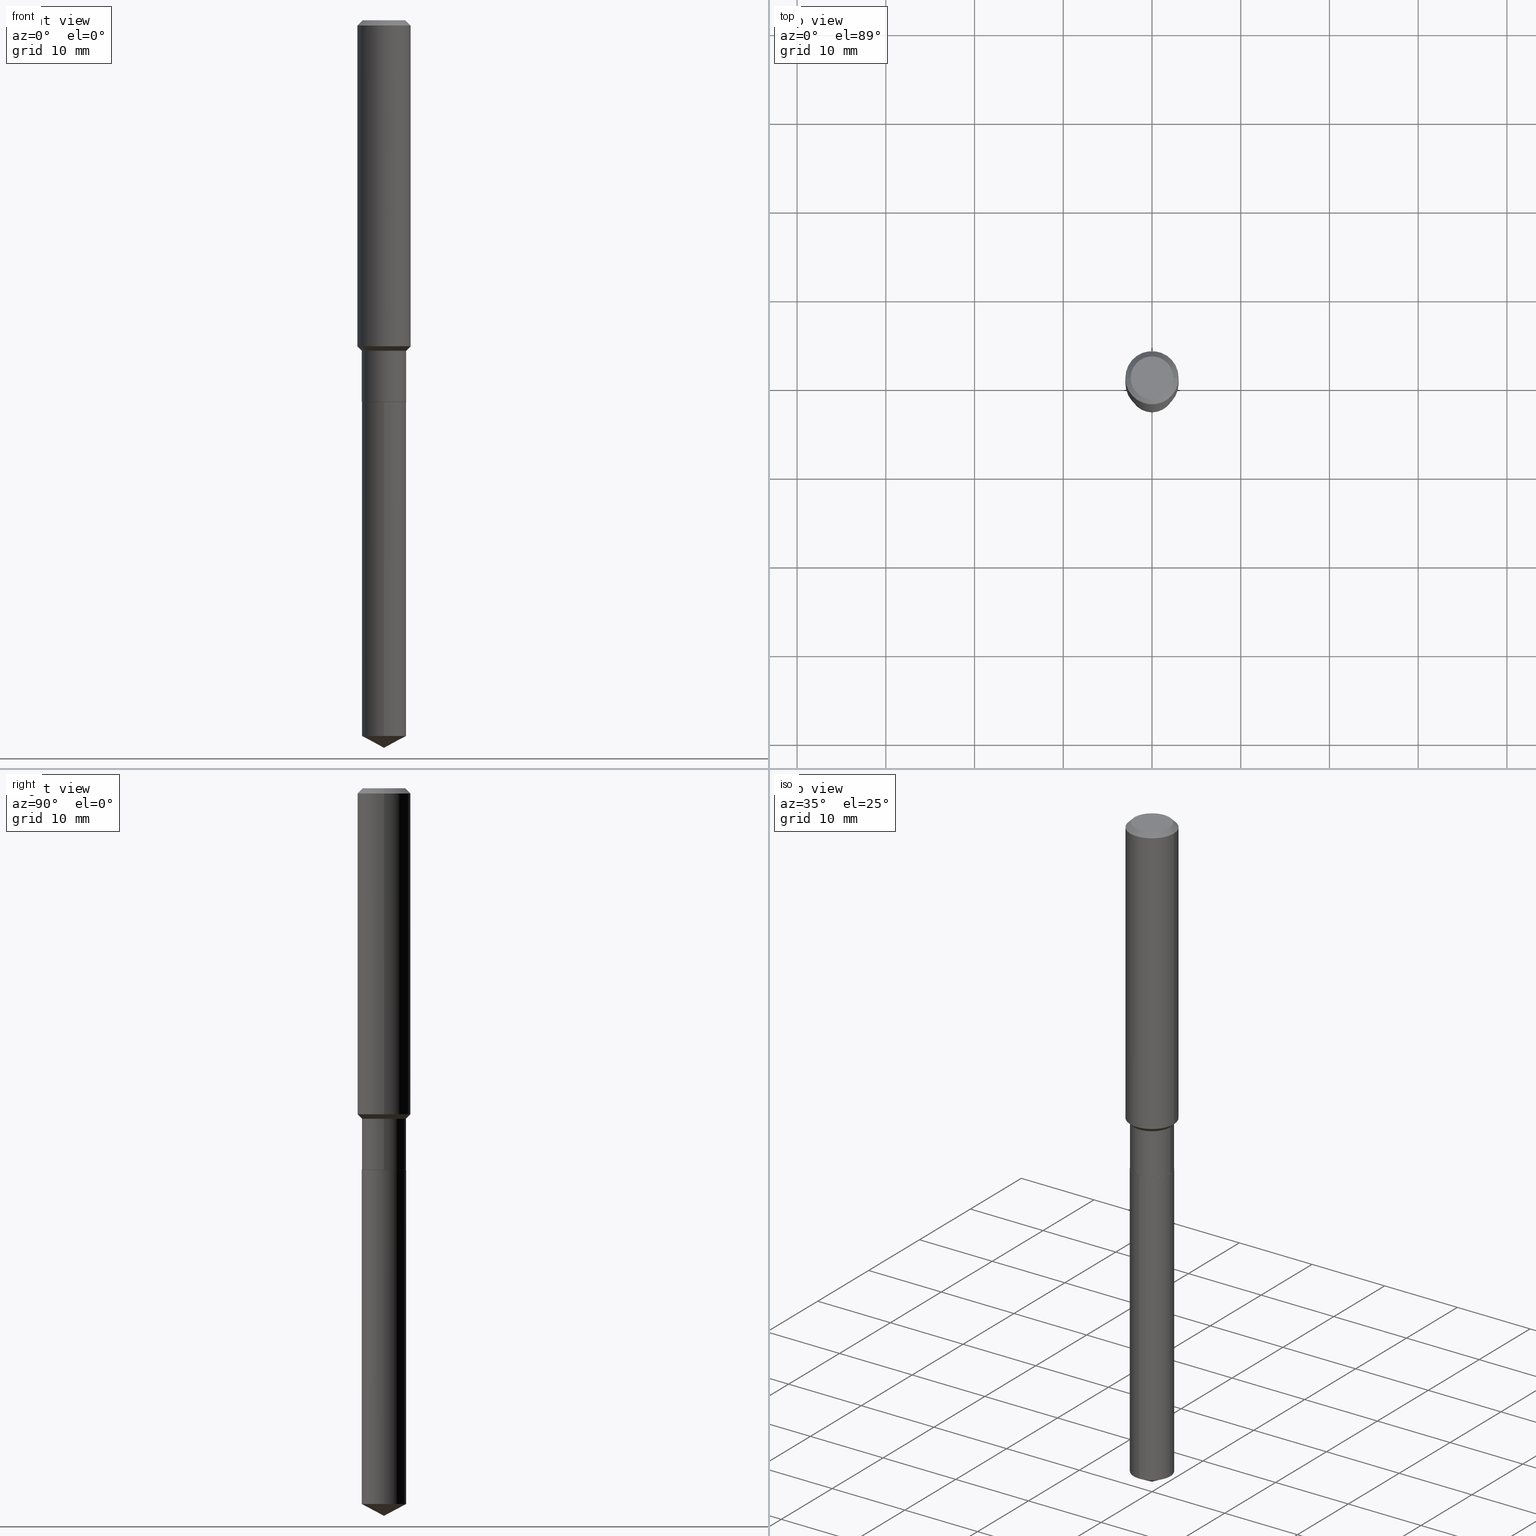
[diagram: canonical four-view strip — front | top / right | iso, engineering-drawing reading convention]
A machine part, canonical four-view strip (front | top / right | iso — engineering-drawing reading convention). The complete STEP part file that produces these views, byte-faithful:
ISO-10303-21;
HEADER;
FILE_DESCRIPTION (( 'STEP AP203' ),
    '1' );
FILE_NAME ('65020.STEP',
    '2024-04-24T19:52:29',
    ( '' ),
    ( '' ),
    'SwSTEP 2.0',
    'SolidWorks 2023',
    '' );
FILE_SCHEMA (( 'CONFIG_CONTROL_DESIGN' ));
ENDSEC;

DATA;
#1 = PLANE ( 'NONE',  #393 ) ;
#2 = VERTEX_POINT ( 'NONE', #74 ) ;
#3 = LINE ( 'NONE', #107, #204 ) ;
#4 = VERTEX_POINT ( 'NONE', #203 ) ;
#5 = AXIS2_PLACEMENT_3D ( 'NONE', #446, #93, #479 ) ;
#6 = ORIENTED_EDGE ( 'NONE', *, *, #237, .F. ) ;
#7 = VECTOR ( 'NONE', #344, 39.37007874015748143 ) ;
#8 = ADVANCED_FACE ( 'NONE', ( #382 ), #390, .F. ) ;
#9 = EDGE_LOOP ( 'NONE', ( #109, #242, #54, #259 ) ) ;
#10 = CARTESIAN_POINT ( 'NONE',  ( 0.000000000000000000, 0.000000000000000000, 0.000000000000000000 ) ) ;
#11 = ADVANCED_FACE ( 'NONE', ( #45 ), #147, .T. ) ;
#12 = EDGE_LOOP ( 'NONE', ( #302, #227, #194, #263 ) ) ;
#13 = DIRECTION ( 'NONE',  ( -1.000000000000000000, 6.982962677686266711E-15, 0.000000000000000000 ) ) ;
#14 = PRODUCT_DEFINITION_SHAPE ( 'NONE', 'NONE',  #19 ) ;
#15 = DIRECTION ( 'NONE',  ( -6.982962677686266711E-15, -1.000000000000000000, 3.541896320645564813E-15 ) ) ;
#16 = FACE_OUTER_BOUND ( 'NONE', #312, .T. ) ;
#17 = VERTEX_POINT ( 'NONE', #84 ) ;
#18 = ORIENTED_EDGE ( 'NONE', *, *, #273, .T. ) ;
#19 = PRODUCT_DEFINITION ( 'UNKNOWN', '', #467, #131 ) ;
#20 = DIRECTION ( 'NONE',  ( 1.000000000000000000, -6.982962677686267499E-15, 4.875432709231658792E-29 ) ) ;
#21 = LINE ( 'NONE', #325, #324 ) ;
#22 = EDGE_CURVE ( 'NONE', #17, #413, #155, .T. ) ;
#23 = DIRECTION ( 'NONE',  ( 1.000000000000000000, -6.982962677686270655E-15, 0.000000000000000000 ) ) ;
#24 = FACE_OUTER_BOUND ( 'NONE', #106, .T. ) ;
#25 = MECHANICAL_CONTEXT ( 'NONE', #161, 'mechanical' ) ;
#26 = CARTESIAN_POINT ( 'NONE',  ( -8.838511658199896589E-28, 1.261861634647219789E-13, 36.14177874015747705 ) ) ;
#27 = DIRECTION ( 'NONE',  ( 1.000000000000000000, -6.982962677686266711E-15, 0.000000000000000000 ) ) ;
#28 = COORDINATED_UNIVERSAL_TIME_OFFSET ( 5, 0, .BEHIND. ) ;
#29 = CARTESIAN_POINT ( 'NONE',  ( -0.09844999999999995421, -4.815090877279988422E-15, -1.466500000000000137 ) ) ;
#30 = EDGE_LOOP ( 'NONE', ( #190, #76, #377, #357 ) ) ;
#31 = CARTESIAN_POINT ( 'NONE',  ( 4.139934141990818357E-29, -5.910728758527561864E-15, -1.692900000000000071 ) ) ;
#32 = ORIENTED_EDGE ( 'NONE', *, *, #237, .T. ) ;
#33 = FACE_OUTER_BOUND ( 'NONE', #461, .T. ) ;
#34 = EDGE_CURVE ( 'NONE', #192, #426, #285, .T. ) ;
#35 = AXIS2_PLACEMENT_3D ( 'NONE', #100, #415, #416 ) ;
#36 = CARTESIAN_POINT ( 'NONE',  ( 0.000000000000000000, 0.000000000000000000, 0.000000000000000000 ) ) ;
#37 = ORIENTED_EDGE ( 'NONE', *, *, #87, .T. ) ;
#38 = DIRECTION ( 'NONE',  ( -2.445468806185136597E-29, 3.491481338843145583E-15, 1.000000000000000000 ) ) ;
#39 = ORIENTED_EDGE ( 'NONE', *, *, #34, .F. ) ;
#40 = EDGE_CURVE ( 'NONE', #192, #238, #176, .T. ) ;
#41 = CARTESIAN_POINT ( 'NONE',  ( 4.139934141990818357E-29, -5.910728758527561864E-15, -1.692900000000000071 ) ) ;
#42 = CLOSED_SHELL ( 'NONE', ( #457, #11, #166, #68, #8 ) ) ;
#43 = ORIENTED_EDGE ( 'NONE', *, *, #361, .F. ) ;
#44 = DIRECTION ( 'NONE',  ( -2.445468806185136597E-29, 3.491481338843145583E-15, 1.000000000000000000 ) ) ;
#45 = FACE_OUTER_BOUND ( 'NONE', #119, .T. ) ;
#46 = DIRECTION ( 'NONE',  ( 1.000000000000000000, -6.982962677686266711E-15, 4.876176775795936353E-29 ) ) ;
#47 = ORIENTED_EDGE ( 'NONE', *, *, #197, .F. ) ;
#48 = CARTESIAN_POINT ( 'NONE',  ( 3.586280004270503451E-29, -5.120257383413473493E-15, -1.466500000000000137 ) ) ;
#49 = ORIENTED_EDGE ( 'NONE', *, *, #156, .F. ) ;
#50 = ADVANCED_FACE ( 'NONE', ( #222 ), #472, .T. ) ;
#51 = AXIS2_PLACEMENT_3D ( 'NONE', #198, #346, #316 ) ;
#52 =( LENGTH_UNIT ( ) NAMED_UNIT ( * ) SI_UNIT ( $, .METRE. ) );
#53 = AXIS2_PLACEMENT_3D ( 'NONE', #187, #102, #27 ) ;
#54 = ORIENTED_EDGE ( 'NONE', *, *, #266, .F. ) ;
#55 = APPROVAL_STATUS ( 'not_yet_approved' ) ;
#56 = CARTESIAN_POINT ( 'NONE',  ( 0.1181000000000000799, -8.246878922347486570E-16, 5.758764772215004644E-30 ) ) ;
#57 = CARTESIAN_POINT ( 'NONE',  ( 4.139934141990818357E-29, -5.910728758527561864E-15, -1.692900000000000071 ) ) ;
#58 = EDGE_CURVE ( 'NONE', #2, #98, #130, .T. ) ;
#59 = DIRECTION ( 'NONE',  ( -2.445468806185136597E-29, 3.491481338843145583E-15, 1.000000000000000000 ) ) ;
#60 = DIRECTION ( 'NONE',  ( 1.000000000000000000, 0.000000000000000000, 0.000000000000000000 ) ) ;
#61 = CC_DESIGN_SECURITY_CLASSIFICATION ( #137, ( #467 ) ) ;
#62 = DIRECTION ( 'NONE',  ( -2.445509088617800403E-29, 3.491423652106837223E-15, 1.000000000000000000 ) ) ;
#63 = COORDINATED_UNIVERSAL_TIME_OFFSET ( 5, 0, .BEHIND. ) ;
#64 = CARTESIAN_POINT ( 'NONE',  ( 0.1180999999999999966, -8.926936027602933910E-16, -0.02362000000000014088 ) ) ;
#65 = DATE_TIME_ROLE ( 'classification_date' ) ;
#66 = FACE_OUTER_BOUND ( 'NONE', #12, .T. ) ;
#67 = ORIENTED_EDGE ( 'NONE', *, *, #422, .T. ) ;
#68 = ADVANCED_FACE ( 'NONE', ( #399 ), #289, .T. ) ;
#69 = CARTESIAN_POINT ( 'NONE',  ( 4.139934141990818357E-29, -5.910728758527561864E-15, -1.692900000000000071 ) ) ;
#70 = ORIENTED_EDGE ( 'NONE', *, *, #223, .T. ) ;
#71 = VERTEX_POINT ( 'NONE', #165 ) ;
#72 = LOCAL_TIME ( 15, 52, 29.00000000000000000, #63 ) ;
#73 = ORIENTED_EDGE ( 'NONE', *, *, #133, .F. ) ;
#74 = CARTESIAN_POINT ( 'NONE',  ( -6.874726756181350545E-16, -0.09845000000001107032, -3.175953206452927002 ) ) ;
#75 = DIRECTION ( 'NONE',  ( -2.445468806185136597E-29, 3.491481338843145583E-15, 1.000000000000000000 ) ) ;
#76 = ORIENTED_EDGE ( 'NONE', *, *, #450, .F. ) ;
#77 = CIRCLE ( 'NONE', #150, 0.1181000000000001632 ) ;
#78 = AXIS2_PLACEMENT_3D ( 'NONE', #41, #75, #272 ) ;
#79 = EDGE_LOOP ( 'NONE', ( #308, #351, #233, #39 ) ) ;
#80 = EDGE_CURVE ( 'NONE', #244, #192, #21, .T. ) ;
#81 = LINE ( 'NONE', #83, #7 ) ;
#82 = ORIENTED_EDGE ( 'NONE', *, *, #410, .T. ) ;
#83 = CARTESIAN_POINT ( 'NONE',  ( 7.894700602524332477E-29, -1.127155829184829715E-14, -3.228299999999999947 ) ) ;
#84 = CARTESIAN_POINT ( 'NONE',  ( 6.995293233558961091E-16, 0.09844999999998889362, -3.175953206452928335 ) ) ;
#85 = PERSON_AND_ORGANIZATION_ROLE ( 'design_owner' ) ;
#86 = CARTESIAN_POINT ( 'NONE',  ( -0.1180999999999999966, 7.422191030112725094E-16, -0.02362000000000014088 ) ) ;
#87 = EDGE_CURVE ( 'NONE', #117, #463, #215, .T. ) ;
#88 = CARTESIAN_POINT ( 'NONE',  ( -6.874726756181714407E-16, -0.09845000000000590779, -1.692899999999999849 ) ) ;
#89 = APPROVAL ( #90, 'UNSPECIFIED' ) ;
#90 = APPROVAL_STATUS ( 'not_yet_approved' ) ;
#91 = DIRECTION ( 'NONE',  ( -6.982962677686265922E-15, -1.000000000000000000, 2.774858297271979165E-15 ) ) ;
#92 = CIRCLE ( 'NONE', #5, 0.09844999999999995421 ) ;
#93 = DIRECTION ( 'NONE',  ( -2.445468806185136597E-29, 3.491481338843145583E-15, 1.000000000000000000 ) ) ;
#94 = AXIS2_PLACEMENT_3D ( 'NONE', #488, #140, #303 ) ;
#95 = DATE_TIME_ROLE ( 'creation_date' ) ;
#96 = DIRECTION ( 'NONE',  ( -6.982962677686265922E-15, -1.000000000000000000, 5.549716594543958330E-15 ) ) ;
#97 = DATE_AND_TIME ( #175, #72 ) ;
#98 = VERTEX_POINT ( 'NONE', #88 ) ;
#99 = CIRCLE ( 'NONE', #169, 0.09794999999999999540 ) ;
#100 = CARTESIAN_POINT ( 'NONE',  ( 3.586280004270503451E-29, -5.120257383413473493E-15, -1.466500000000000137 ) ) ;
#101 = AXIS2_PLACEMENT_3D ( 'NONE', #386, #199, #435 ) ;
#102 = DIRECTION ( 'NONE',  ( -2.445468806185136597E-29, 3.491481338843145583E-15, 1.000000000000000000 ) ) ;
#103 = ORIENTED_EDGE ( 'NONE', *, *, #223, .F. ) ;
#104 = APPROVAL ( #178, 'UNSPECIFIED' ) ;
#105 = FACE_OUTER_BOUND ( 'NONE', #9, .T. ) ;
#106 = EDGE_LOOP ( 'NONE', ( #419, #67, #145 ) ) ;
#107 = CARTESIAN_POINT ( 'NONE',  ( 7.894838186748898083E-29, -1.127136297609650291E-14, -3.228299999999999947 ) ) ;
#108 = ADVANCED_FACE ( 'NONE', ( #367 ), #331, .F. ) ;
#109 = ORIENTED_EDGE ( 'NONE', *, *, #406, .T. ) ;
#110 = DIRECTION ( 'NONE',  ( 2.445468806185136597E-29, -3.491481338843145583E-15, -1.000000000000000000 ) ) ;
#111 = ORIENTED_EDGE ( 'NONE', *, *, #431, .F. ) ;
#112 = CYLINDRICAL_SURFACE ( 'NONE', #287, 0.09844999999999998197 ) ;
#113 = DIRECTION ( 'NONE',  ( -2.445468806185136597E-29, 3.491481338843145583E-15, 1.000000000000000000 ) ) ;
#114 = EDGE_CURVE ( 'NONE', #464, #267, #99, .T. ) ;
#115 = VECTOR ( 'NONE', #252, 39.37007874015748143 ) ;
#116 = FACE_OUTER_BOUND ( 'NONE', #434, .T. ) ;
#117 = VERTEX_POINT ( 'NONE', #210 ) ;
#118 = CARTESIAN_POINT ( 'NONE',  ( 5.776197320209327532E-31, -8.246878922347559293E-17, -0.02362000000000014088 ) ) ;
#119 = EDGE_LOOP ( 'NONE', ( #470, #18, #343 ) ) ;
#120 = EDGE_CURVE ( 'NONE', #238, #463, #466, .T. ) ;
#121 = DIRECTION ( 'NONE',  ( 1.000000000000000000, -6.982962677686266711E-15, 0.000000000000000000 ) ) ;
#122 = CIRCLE ( 'NONE', #391, 0.09844999999999999585 ) ;
#123 = DATE_AND_TIME ( #445, #424 ) ;
#124 = AXIS2_PLACEMENT_3D ( 'NONE', #126, #356, #20 ) ;
#125 = CARTESIAN_POINT ( 'NONE',  ( -0.1181000000000000799, 8.391509709326788873E-16, -5.809262341591047988E-30 ) ) ;
#126 = CARTESIAN_POINT ( 'NONE',  ( 4.716267017698007905E-46, -6.733579360998555036E-32, -1.928573779297252010E-17 ) ) ;
#127 = DIRECTION ( 'NONE',  ( -2.445468806185136877E-29, 3.491481338843145188E-15, 1.000000000000000000 ) ) ;
#128 = FACE_OUTER_BOUND ( 'NONE', #275, .T. ) ;
#129 = PERSON_AND_ORGANIZATION_ROLE ( 'design_supplier' ) ;
#130 = LINE ( 'NONE', #286, #401 ) ;
#131 = DESIGN_CONTEXT ( 'detailed design', #170, 'design' ) ;
#132 = CIRCLE ( 'NONE', #202, 0.09844999999999999585 ) ;
#133 = EDGE_CURVE ( 'NONE', #244, #185, #92, .T. ) ;
#134 = APPROVAL_ROLE ( '' ) ;
#135 = DIRECTION ( 'NONE',  ( -2.445509088617800403E-29, 3.491423652106837223E-15, 1.000000000000000000 ) ) ;
#136 = AXIS2_PLACEMENT_3D ( 'NONE', #471, #164, #60 ) ;
#137 = SECURITY_CLASSIFICATION ( '', '', #332 ) ;
#138 = CC_DESIGN_PERSON_AND_ORGANIZATION_ASSIGNMENT ( #253, #366, ( #137 ) ) ;
#139 = DIRECTION ( 'NONE',  ( -2.445509088617800403E-29, 3.491423652106837223E-15, 1.000000000000000000 ) ) ;
#140 = DIRECTION ( 'NONE',  ( 2.445468806185136597E-29, -3.491481338843145583E-15, -1.000000000000000000 ) ) ;
#141 = CIRCLE ( 'NONE', #459, 0.09844999999999999585 ) ;
#142 = DIRECTION ( 'NONE',  ( -1.000000000000000000, 6.982962677686265922E-15, -4.876176775795935793E-29 ) ) ;
#143 = ORIENTED_EDGE ( 'NONE', *, *, #406, .F. ) ;
#144 = FACE_OUTER_BOUND ( 'NONE', #380, .T. ) ;
#145 = ORIENTED_EDGE ( 'NONE', *, *, #291, .F. ) ;
#146 = EDGE_CURVE ( 'NONE', #267, #196, #257, .T. ) ;
#147 = CONICAL_SURFACE ( 'NONE', #383, 74.04434902938345431, 1.082104136236486047 ) ;
#148 = ORIENTED_EDGE ( 'NONE', *, *, #114, .F. ) ;
#149 = DATE_AND_TIME ( #403, #404 ) ;
#150 = AXIS2_PLACEMENT_3D ( 'NONE', #157, #319, #162 ) ;
#151 = MANIFOLD_SOLID_BREP ( 'Body-Move/Copy2[2]', #352 ) ;
#152 = ORIENTED_EDGE ( 'NONE', *, *, #40, .F. ) ;
#153 = APPROVAL_DATE_TIME ( #149, #427 ) ;
#154 = CYLINDRICAL_SURFACE ( 'NONE', #490, 0.1181000000000000799 ) ;
#155 = LINE ( 'NONE', #314, #473 ) ;
#156 = EDGE_CURVE ( 'NONE', #98, #413, #122, .T. ) ;
#157 = CARTESIAN_POINT ( 'NONE',  ( 3.538226542228964985E-29, -5.051649775105204853E-15, -1.446849999999999969 ) ) ;
#158 = ORIENTED_EDGE ( 'NONE', *, *, #281, .F. ) ;
#159 = PRODUCT_RELATED_PRODUCT_CATEGORY ( 'detail', '', ( #418 ) ) ;
#160 = AXIS2_PLACEMENT_3D ( 'NONE', #48, #359, #177 ) ;
#161 = APPLICATION_CONTEXT ( 'configuration controlled 3d designs of mechanical parts and assemblies' ) ;
#162 = DIRECTION ( 'NONE',  ( 1.000000000000000000, -6.982962677686270655E-15, 0.000000000000000000 ) ) ;
#163 = ORIENTED_EDGE ( 'NONE', *, *, #266, .T. ) ;
#164 = DIRECTION ( 'NONE',  ( 0.000000000000000000, 0.000000000000000000, 1.000000000000000000 ) ) ;
#165 = CARTESIAN_POINT ( 'NONE',  ( 0.09844999999999999585, -6.596455693476352920E-15, -1.692400000000000126 ) ) ;
#166 = ADVANCED_FACE ( 'NONE', ( #24 ), #412, .T. ) ;
#167 = CYLINDRICAL_SURFACE ( 'NONE', #172, 0.09844999999999999585 ) ;
#168 = CARTESIAN_POINT ( 'NONE',  ( 0.000000000000000000, 0.000000000000000000, 0.000000000000000000 ) ) ;
#169 = AXIS2_PLACEMENT_3D ( 'NONE', #251, #296, #23 ) ;
#170 = APPLICATION_CONTEXT ( 'configuration controlled 3d designs of mechanical parts and assemblies' ) ;
#171 = DATE_AND_TIME ( #398, #189 ) ;
#172 = AXIS2_PLACEMENT_3D ( 'NONE', #323, #298, #395 ) ;
#173 = DIRECTION ( 'NONE',  ( -0.7071067811866199593, 7.493145998870616062E-15, 0.7071067811864750752 ) ) ;
#174 = CARTESIAN_POINT ( 'NONE',  ( 0.09794999999999999540, -6.594709952806931417E-15, -1.692900000000000071 ) ) ;
#175 = CALENDAR_DATE ( 2024, 24, 4 ) ;
#176 = LINE ( 'NONE', #125, #430 ) ;
#177 = DIRECTION ( 'NONE',  ( 1.000000000000000000, -6.982962677686269077E-15, 0.000000000000000000 ) ) ;
#178 = APPROVAL_STATUS ( 'not_yet_approved' ) ;
#179 = DIRECTION ( 'NONE',  ( -6.982962677686266711E-15, -1.000000000000000000, 3.541896320645564813E-15 ) ) ;
#180 = CIRCLE ( 'NONE', #458, 0.09844999999999995421 ) ;
#181 = PERSON_AND_ORGANIZATION ( #388, #278 ) ;
#182 = CONICAL_SURFACE ( 'NONE', #483, 0.09794999999999999540, 0.7853981633975507526 ) ;
#183 = EDGE_CURVE ( 'NONE', #2, #17, #132, .T. ) ;
#184 = CARTESIAN_POINT ( 'NONE',  ( 4.138711407587726116E-29, -5.908983017858140360E-15, -1.692400000000000126 ) ) ;
#185 = VERTEX_POINT ( 'NONE', #443 ) ;
#186 = CC_DESIGN_PERSON_AND_ORGANIZATION_ASSIGNMENT ( #212, #219, ( #19 ) ) ;
#187 = CARTESIAN_POINT ( 'NONE',  ( 5.776197320209327532E-31, -8.246878922347559293E-17, -0.02362000000000014088 ) ) ;
#188 = ORIENTED_EDGE ( 'NONE', *, *, #22, .F. ) ;
#189 = LOCAL_TIME ( 15, 52, 29.00000000000000000, #288 ) ;
#190 = ORIENTED_EDGE ( 'NONE', *, *, #87, .F. ) ;
#191 = DIRECTION ( 'NONE',  ( -2.445468806185136597E-29, 3.491481338843145583E-15, 1.000000000000000000 ) ) ;
#192 = VERTEX_POINT ( 'NONE', #258 ) ;
#193 = DIRECTION ( 'NONE',  ( -2.445468806185136877E-29, 3.491481338843145188E-15, 1.000000000000000000 ) ) ;
#194 = ORIENTED_EDGE ( 'NONE', *, *, #240, .F. ) ;
#195 = AXIS2_PLACEMENT_3D ( 'NONE', #31, #228, #307 ) ;
#196 = VERTEX_POINT ( 'NONE', #409 ) ;
#197 = EDGE_CURVE ( 'NONE', #487, #238, #438, .T. ) ;
#198 = CARTESIAN_POINT ( 'NONE',  ( 4.139934141990818357E-29, -5.910728758527561864E-15, -1.692900000000000071 ) ) ;
#199 = DIRECTION ( 'NONE',  ( -2.445468806185136597E-29, 3.491481338843145583E-15, 1.000000000000000000 ) ) ;
#200 = EDGE_LOOP ( 'NONE', ( #188, #436, #206, #6 ) ) ;
#201 = CARTESIAN_POINT ( 'NONE',  ( 4.138711407587726116E-29, -5.908983017858140360E-15, -1.692400000000000126 ) ) ;
#202 = AXIS2_PLACEMENT_3D ( 'NONE', #299, #448, #96 ) ;
#203 = CARTESIAN_POINT ( 'NONE',  ( 7.894836990784845646E-29, -1.127136297609650291E-14, -3.228299999999999947 ) ) ;
#204 = VECTOR ( 'NONE', #264, 39.37007874015748143 ) ;
#205 =( NAMED_UNIT ( * ) PLANE_ANGLE_UNIT ( ) SI_UNIT ( $, .RADIAN. ) );
#206 = ORIENTED_EDGE ( 'NONE', *, *, #58, .T. ) ;
#207 = COORDINATED_UNIVERSAL_TIME_OFFSET ( 5, 0, .BEHIND. ) ;
#208 = LINE ( 'NONE', #474, #115 ) ;
#209 = DIRECTION ( 'NONE',  ( -2.445468806185136597E-29, 3.491481338843145583E-15, 1.000000000000000000 ) ) ;
#210 = CARTESIAN_POINT ( 'NONE',  ( 0.09447999999999998066, -7.704367267948738690E-16, -1.928573779296752193E-17 ) ) ;
#211 = AXIS2_PLACEMENT_3D ( 'NONE', #218, #292, #371 ) ;
#212 = PERSON_AND_ORGANIZATION ( #388, #278 ) ;
#213 = AXIS2_PLACEMENT_3D ( 'NONE', #36, #191, #335 ) ;
#214 = EDGE_CURVE ( 'NONE', #426, #463, #396, .T. ) ;
#215 = LINE ( 'NONE', #64, #315 ) ;
#216 = APPLICATION_PROTOCOL_DEFINITION ( 'international standard', 'config_control_design', 1994, #161 ) ;
#217 = PERSON_AND_ORGANIZATION ( #388, #278 ) ;
#218 = CARTESIAN_POINT ( 'NONE',  ( 4.139934141990818357E-29, -5.910728758527561864E-15, -1.692900000000000071 ) ) ;
#219 = PERSON_AND_ORGANIZATION_ROLE ( 'creator' ) ;
#220 = APPROVAL_ROLE ( '' ) ;
#221 = DATE_AND_TIME ( #480, #290 ) ;
#222 = FACE_OUTER_BOUND ( 'NONE', #235, .T. ) ;
#223 = EDGE_CURVE ( 'NONE', #185, #244, #180, .T. ) ;
#224 = PERSON_AND_ORGANIZATION ( #388, #278 ) ;
#225 = CARTESIAN_POINT ( 'NONE',  ( 2.358133508849003952E-46, -3.366789680499277518E-32, -9.642868896486260050E-18 ) ) ;
#226 = VECTOR ( 'NONE', #282, 39.37007874015748143 ) ;
#227 = ORIENTED_EDGE ( 'NONE', *, *, #146, .T. ) ;
#228 = DIRECTION ( 'NONE',  ( -2.445509088617800403E-29, 3.491423652106837223E-15, 1.000000000000000000 ) ) ;
#229 = DIRECTION ( 'NONE',  ( -2.445468806185136597E-29, 3.491481338843145583E-15, 1.000000000000000000 ) ) ;
#230 = VECTOR ( 'NONE', #173, 39.37007874015748143 ) ;
#231 = CYLINDRICAL_SURFACE ( 'NONE', #213, 0.1181000000000000799 ) ;
#232 = CIRCLE ( 'NONE', #384, 0.09794999999999999540 ) ;
#233 = ORIENTED_EDGE ( 'NONE', *, *, #485, .T. ) ;
#234 = DIRECTION ( 'NONE',  ( -2.445468806185136597E-29, 3.491481338843145583E-15, 1.000000000000000000 ) ) ;
#235 = EDGE_LOOP ( 'NONE', ( #456, #277, #103, #354 ) ) ;
#236 = ORIENTED_EDGE ( 'NONE', *, *, #318, .T. ) ;
#237 = EDGE_CURVE ( 'NONE', #413, #98, #246, .T. ) ;
#238 = VERTEX_POINT ( 'NONE', #376 ) ;
#239 = CONICAL_SURFACE ( 'NONE', #78, 0.09794999999999999540, 0.7853981633975507526 ) ;
#240 = EDGE_CURVE ( 'NONE', #71, #196, #476, .T. ) ;
#241 = CARTESIAN_POINT ( 'NONE',  ( 0.000000000000000000, 0.000000000000000000, 0.000000000000000000 ) ) ;
#242 = ORIENTED_EDGE ( 'NONE', *, *, #40, .T. ) ;
#243 = FACE_OUTER_BOUND ( 'NONE', #79, .T. ) ;
#244 = VERTEX_POINT ( 'NONE', #29 ) ;
#245 =( CONVERSION_BASED_UNIT ( 'INCH', #447 ) LENGTH_UNIT ( ) NAMED_UNIT ( #428 ) );
#246 = CIRCLE ( 'NONE', #195, 0.09844999999999999585 ) ;
#247 = CARTESIAN_POINT ( 'NONE',  ( 3.538226542228964985E-29, -5.051649775105204853E-15, -1.446849999999999969 ) ) ;
#248 = VECTOR ( 'NONE', #374, 39.37007874015748143 ) ;
#249 = APPLICATION_PROTOCOL_DEFINITION ( 'international standard', 'config_control_design', 1994, #170 ) ;
#250 = DIRECTION ( 'NONE',  ( -0.7071067811865459074, 2.468850131082240100E-15, -0.7071067811865491270 ) ) ;
#251 = CARTESIAN_POINT ( 'NONE',  ( 4.139934141990818357E-29, -5.910728758527561864E-15, -1.692900000000000071 ) ) ;
#252 = DIRECTION ( 'NONE',  ( 0.7071067811865484609, -2.468850131082266921E-15, 0.7071067811865465735 ) ) ;
#253 = PERSON_AND_ORGANIZATION ( #388, #278 ) ;
#254 = CARTESIAN_POINT ( 'NONE',  ( -0.09794999999999999540, -5.214752148850543863E-15, -1.692900000000000071 ) ) ;
#255 = AXIS2_PLACEMENT_3D ( 'NONE', #247, #113, #387 ) ;
#256 = APPROVAL_PERSON_ORGANIZATION ( #181, #104, #330 ) ;
#257 = LINE ( 'NONE', #254, #230 ) ;
#258 = CARTESIAN_POINT ( 'NONE',  ( -0.1181000000000001632, -4.212498804172525078E-15, -1.446849999999999969 ) ) ;
#259 = ORIENTED_EDGE ( 'NONE', *, *, #214, .F. ) ;
#260 = AXIS2_PLACEMENT_3D ( 'NONE', #168, #59, #482 ) ;
#261 = CARTESIAN_POINT ( 'NONE',  ( 0.09794999999999999540, -6.594709952806931417E-15, -1.692900000000000071 ) ) ;
#262 = CONICAL_SURFACE ( 'NONE', #160, 0.09844999999999995421, 0.7853981633974496113 ) ;
#263 = ORIENTED_EDGE ( 'NONE', *, *, #318, .F. ) ;
#264 = DIRECTION ( 'NONE',  ( 6.273719981627762921E-15, 0.8829475928589293199, 0.4694715627858860874 ) ) ;
#265 = ORIENTED_EDGE ( 'NONE', *, *, #183, .T. ) ;
#266 = EDGE_CURVE ( 'NONE', #463, #238, #440, .T. ) ;
#267 = VERTEX_POINT ( 'NONE', #301 ) ;
#268 = VECTOR ( 'NONE', #127, 39.37007874015748143 ) ;
#269 = CC_DESIGN_DATE_AND_TIME_ASSIGNMENT ( #171, #95, ( #19 ) ) ;
#270 =( GEOMETRIC_REPRESENTATION_CONTEXT ( 3 ) GLOBAL_UNCERTAINTY_ASSIGNED_CONTEXT ( ( #337 ) ) GLOBAL_UNIT_ASSIGNED_CONTEXT ( ( #245, #205, #294 ) ) REPRESENTATION_CONTEXT ( 'NONE', 'WORKASPACE' ) );
#271 = CC_DESIGN_APPROVAL ( #104, ( #467 ) ) ;
#272 = DIRECTION ( 'NONE',  ( 1.000000000000000000, -6.982962677686270655E-15, 0.000000000000000000 ) ) ;
#273 = EDGE_CURVE ( 'NONE', #4, #17, #3, .T. ) ;
#274 = CARTESIAN_POINT ( 'NONE',  ( -0.09844999999999998197, 6.995293233558185049E-16, -4.842691596355953341E-30 ) ) ;
#275 = EDGE_LOOP ( 'NONE', ( #265, #423, #49, #306 ) ) ;
#276 = DIRECTION ( 'NONE',  ( -2.445468806185136597E-29, 3.491481338843145583E-15, 1.000000000000000000 ) ) ;
#277 = ORIENTED_EDGE ( 'NONE', *, *, #361, .T. ) ;
#278 = ORGANIZATION ( 'UNSPECIFIED', 'UNSPECIFIED', '' ) ;
#279 = CC_DESIGN_APPROVAL ( #89, ( #137 ) ) ;
#280 = DIRECTION ( 'NONE',  ( -2.445509088617800403E-29, 3.491423652106837223E-15, 1.000000000000000000 ) ) ;
#281 = EDGE_CURVE ( 'NONE', #267, #464, #232, .T. ) ;
#282 = DIRECTION ( 'NONE',  ( -2.445468806185136877E-29, 3.491481338843145188E-15, 1.000000000000000000 ) ) ;
#283 = ORIENTED_EDGE ( 'NONE', *, *, #146, .F. ) ;
#284 = PERSON_AND_ORGANIZATION ( #388, #278 ) ;
#285 = CIRCLE ( 'NONE', #255, 0.1181000000000001632 ) ;
#286 = CARTESIAN_POINT ( 'NONE',  ( -6.874726756181714407E-16, -0.09845000000000590779, -1.692899999999999849 ) ) ;
#287 = AXIS2_PLACEMENT_3D ( 'NONE', #10, #276, #350 ) ;
#288 = COORDINATED_UNIVERSAL_TIME_OFFSET ( 5, 0, .BEHIND. ) ;
#289 = CYLINDRICAL_SURFACE ( 'NONE', #489, 0.09844999999999999585 ) ;
#290 = LOCAL_TIME ( 15, 52, 29.00000000000000000, #477 ) ;
#291 = EDGE_CURVE ( 'NONE', #17, #2, #365, .T. ) ;
#292 = DIRECTION ( 'NONE',  ( -2.438088387897960049E-29, 3.491481338843145188E-15, 1.000000000000000000 ) ) ;
#293 = ADVANCED_FACE ( 'NONE', ( #33 ), #1, .F. ) ;
#294 =( NAMED_UNIT ( * ) SI_UNIT ( $, .STERADIAN. ) SOLID_ANGLE_UNIT ( ) );
#295 = PERSON_AND_ORGANIZATION ( #388, #278 ) ;
#296 = DIRECTION ( 'NONE',  ( -2.445468806185136597E-29, 3.491481338843145583E-15, 1.000000000000000000 ) ) ;
#297 = CC_DESIGN_APPROVAL ( #427, ( #19 ) ) ;
#298 = DIRECTION ( 'NONE',  ( -2.445509088617800403E-29, 3.491423652106837223E-15, 1.000000000000000000 ) ) ;
#299 = CARTESIAN_POINT ( 'NONE',  ( 7.766754237275222935E-29, -1.108869580087019846E-14, -3.175953206452927891 ) ) ;
#300 = FACE_OUTER_BOUND ( 'NONE', #320, .T. ) ;
#301 = CARTESIAN_POINT ( 'NONE',  ( -0.09794999999999999540, -5.212102921676432662E-15, -1.692900000000000071 ) ) ;
#302 = ORIENTED_EDGE ( 'NONE', *, *, #114, .T. ) ;
#303 = DIRECTION ( 'NONE',  ( -1.000000000000000000, 6.982962677686266711E-15, 0.000000000000000000 ) ) ;
#304 = CONICAL_SURFACE ( 'NONE', #35, 0.09844999999999995421, 0.7853981633974496113 ) ;
#305 = DIRECTION ( 'NONE',  ( 1.000000000000000000, -6.982962677686270655E-15, 0.000000000000000000 ) ) ;
#306 = ORIENTED_EDGE ( 'NONE', *, *, #58, .F. ) ;
#307 = DIRECTION ( 'NONE',  ( -6.982962677686265922E-15, -1.000000000000000000, 2.774858297271979165E-15 ) ) ;
#308 = ORIENTED_EDGE ( 'NONE', *, *, #80, .F. ) ;
#309 = ADVANCED_FACE ( 'NONE', ( #300 ), #304, .T. ) ;
#310 = AXIS2_PLACEMENT_3D ( 'NONE', #118, #110, #13 ) ;
#311 = EDGE_LOOP ( 'NONE', ( #342, #32 ) ) ;
#312 = EDGE_LOOP ( 'NONE', ( #152, #340, #378, #437 ) ) ;
#313 = CARTESIAN_POINT ( 'NONE',  ( 0.09844999999999998197, -6.874726756182128559E-16, 4.800596035771097813E-30 ) ) ;
#314 = CARTESIAN_POINT ( 'NONE',  ( 6.995293233558598215E-16, 0.09844999999999408391, -1.692900000000000293 ) ) ;
#315 = VECTOR ( 'NONE', #442, 39.37007874015748143 ) ;
#316 = DIRECTION ( 'NONE',  ( 6.982962677686265922E-15, 1.000000000000000000, -3.491423652106837223E-15 ) ) ;
#317 = CONICAL_SURFACE ( 'NONE', #94, 0.1180999999999999966, 0.7853981633974460586 ) ;
#318 = EDGE_CURVE ( 'NONE', #464, #71, #449, .T. ) ;
#319 = DIRECTION ( 'NONE',  ( -2.445468806185136597E-29, 3.491481338843145583E-15, 1.000000000000000000 ) ) ;
#320 = EDGE_LOOP ( 'NONE', ( #70, #334, #143, #392 ) ) ;
#321 = CC_DESIGN_PERSON_AND_ORGANIZATION_ASSIGNMENT ( #284, #85, ( #418 ) ) ;
#322 = DIRECTION ( 'NONE',  ( -0.7071067811865484609, 7.493145998870357316E-15, 0.7071067811865465735 ) ) ;
#323 = CARTESIAN_POINT ( 'NONE',  ( 4.139934141990818357E-29, -5.910728758527561864E-15, -1.692900000000000071 ) ) ;
#324 = VECTOR ( 'NONE', #322, 39.37007874015748143 ) ;
#325 = CARTESIAN_POINT ( 'NONE',  ( -0.09844999999999995421, -4.420728060057654594E-15, -1.466500000000000137 ) ) ;
#326 = MANIFOLD_SOLID_BREP ( 'Body-Move/Copy2[1]', #42 ) ;
#327 = DIRECTION ( 'NONE',  ( -2.445509088617800403E-29, 3.491423652106837223E-15, 1.000000000000000000 ) ) ;
#328 = ADVANCED_BREP_SHAPE_REPRESENTATION ( '65020', ( #326, #151, #136 ), #270 ) ;
#329 = DIRECTION ( 'NONE',  ( -2.445468806185136597E-29, 3.491481338843145583E-15, 1.000000000000000000 ) ) ;
#330 = APPROVAL_ROLE ( '' ) ;
#331 = PLANE ( 'NONE',  #211 ) ;
#332 = SECURITY_CLASSIFICATION_LEVEL ( 'unclassified' ) ;
#333 = DIRECTION ( 'NONE',  ( -2.445468806185136597E-29, 3.491481338843145583E-15, 1.000000000000000000 ) ) ;
#334 = ORIENTED_EDGE ( 'NONE', *, *, #80, .T. ) ;
#335 = DIRECTION ( 'NONE',  ( 1.000000000000000000, -6.982962677686266711E-15, 4.876176775795936353E-29 ) ) ;
#336 = ADVANCED_FACE ( 'NONE', ( #105 ), #231, .T. ) ;
#337 = UNCERTAINTY_MEASURE_WITH_UNIT (LENGTH_MEASURE( 1.000000000000000082E-05 ), #245, 'distance_accuracy_value', 'NONE');
#338 = APPROVAL_PERSON_ORGANIZATION ( #441, #427, #220 ) ;
#339 = CARTESIAN_POINT ( 'NONE',  ( 4.139934141990818357E-29, -5.910728758527561864E-15, -1.692900000000000071 ) ) ;
#340 = ORIENTED_EDGE ( 'NONE', *, *, #34, .T. ) ;
#341 = DIRECTION ( 'NONE',  ( 1.000000000000000000, -6.982962677686270655E-15, 0.000000000000000000 ) ) ;
#342 = ORIENTED_EDGE ( 'NONE', *, *, #156, .T. ) ;
#343 = ORIENTED_EDGE ( 'NONE', *, *, #183, .F. ) ;
#344 = DIRECTION ( 'NONE',  ( -6.165590087286832085E-15, -0.8829475928589261002, 0.4694715627858923601 ) ) ;
#345 = CIRCLE ( 'NONE', #124, 0.09447999999999998066 ) ;
#346 = DIRECTION ( 'NONE',  ( 2.445509088617800122E-29, -3.491423652106837223E-15, -1.000000000000000000 ) ) ;
#347 = APPROVAL_PERSON_ORGANIZATION ( #295, #89, #134 ) ;
#348 = FACE_OUTER_BOUND ( 'NONE', #468, .T. ) ;
#349 = DIRECTION ( 'NONE',  ( -2.445509088617800403E-29, 3.491423652106837223E-15, 1.000000000000000000 ) ) ;
#350 = DIRECTION ( 'NONE',  ( 1.000000000000000000, -6.982962677686266711E-15, 4.876176775795935793E-29 ) ) ;
#351 = ORIENTED_EDGE ( 'NONE', *, *, #133, .T. ) ;
#352 = CLOSED_SHELL ( 'NONE', ( #355, #358, #336, #309, #50, #414, #444, #394, #389, #293, #108, #397 ) ) ;
#353 = DIRECTION ( 'NONE',  ( 1.000000000000000000, -6.982962677686265922E-15, 0.000000000000000000 ) ) ;
#354 = ORIENTED_EDGE ( 'NONE', *, *, #410, .F. ) ;
#355 = ADVANCED_FACE ( 'NONE', ( #66 ), #182, .T. ) ;
#356 = DIRECTION ( 'NONE',  ( -2.445468806185136597E-29, 3.491481338843145583E-15, 1.000000000000000000 ) ) ;
#357 = ORIENTED_EDGE ( 'NONE', *, *, #120, .T. ) ;
#358 = ADVANCED_FACE ( 'NONE', ( #144 ), #317, .T. ) ;
#359 = DIRECTION ( 'NONE',  ( -2.445468806185136597E-29, 3.491481338843145583E-15, 1.000000000000000000 ) ) ;
#360 = DIRECTION ( 'NONE',  ( -6.982962677686265922E-15, -1.000000000000000000, 2.774858297271979165E-15 ) ) ;
#361 = EDGE_CURVE ( 'NONE', #196, #244, #462, .T. ) ;
#362 = APPROVAL_DATE_TIME ( #123, #89 ) ;
#363 = CARTESIAN_POINT ( 'NONE',  ( 5.776197320209327532E-31, -8.246878922347559293E-17, -0.02362000000000014088 ) ) ;
#364 = CONICAL_SURFACE ( 'NONE', #310, 0.1180999999999999966, 0.7853981633974460586 ) ;
#365 = CIRCLE ( 'NONE', #433, 0.09844999999999999585 ) ;
#366 = PERSON_AND_ORGANIZATION_ROLE ( 'classification_officer' ) ;
#367 = FACE_OUTER_BOUND ( 'NONE', #381, .T. ) ;
#368 = CARTESIAN_POINT ( 'NONE',  ( -0.09447999999999998066, 7.009847083995354710E-16, -1.928573779297727792E-17 ) ) ;
#369 = CARTESIAN_POINT ( 'NONE',  ( 4.139934141990818357E-29, -5.910728758527561864E-15, -1.692900000000000071 ) ) ;
#370 = EDGE_CURVE ( 'NONE', #196, #71, #141, .T. ) ;
#371 = DIRECTION ( 'NONE',  ( 1.000000000000000000, -6.982962677686265922E-15, 4.876176775795935793E-29 ) ) ;
#372 = AXIS2_PLACEMENT_3D ( 'NONE', #363, #329, #121 ) ;
#373 = CC_DESIGN_PERSON_AND_ORGANIZATION_ASSIGNMENT ( #217, #129, ( #467 ) ) ;
#374 = DIRECTION ( 'NONE',  ( 0.7071067811866199593, -2.468850131083015945E-15, 0.7071067811864750752 ) ) ;
#375 = ORIENTED_EDGE ( 'NONE', *, *, #431, .T. ) ;
#376 = CARTESIAN_POINT ( 'NONE',  ( -0.1180999999999999966, -1.727908311231660578E-15, -0.02362000000000014088 ) ) ;
#377 = ORIENTED_EDGE ( 'NONE', *, *, #197, .T. ) ;
#378 = ORIENTED_EDGE ( 'NONE', *, *, #214, .T. ) ;
#379 = AXIS2_PLACEMENT_3D ( 'NONE', #184, #234, #486 ) ;
#380 = EDGE_LOOP ( 'NONE', ( #111, #37, #163, #47 ) ) ;
#381 = EDGE_LOOP ( 'NONE', ( #148, #158 ) ) ;
#382 = FACE_OUTER_BOUND ( 'NONE', #311, .T. ) ;
#383 = AXIS2_PLACEMENT_3D ( 'NONE', #429, #349, #15 ) ;
#384 = AXIS2_PLACEMENT_3D ( 'NONE', #339, #333, #305 ) ;
#385 = ORIENTED_EDGE ( 'NONE', *, *, #370, .F. ) ;
#386 = CARTESIAN_POINT ( 'NONE',  ( 4.716267017698007905E-46, -6.733579360998555036E-32, -1.928573779297252010E-17 ) ) ;
#387 = DIRECTION ( 'NONE',  ( 1.000000000000000000, -6.982962677686270655E-15, 0.000000000000000000 ) ) ;
#388 = PERSON ( 'UNSPECIFIED', 'UNSPECIFIED', 'UNSPECIFIED', ('UNSPECIFIED'), ('UNSPECIFIED'), ('UNSPECIFIED') ) ;
#389 = ADVANCED_FACE ( 'NONE', ( #460 ), #364, .T. ) ;
#390 = PLANE ( 'NONE',  #51 ) ;
#391 = AXIS2_PLACEMENT_3D ( 'NONE', #369, #327, #91 ) ;
#392 = ORIENTED_EDGE ( 'NONE', *, *, #485, .F. ) ;
#393 = AXIS2_PLACEMENT_3D ( 'NONE', #225, #452, #142 ) ;
#394 = ADVANCED_FACE ( 'NONE', ( #16 ), #154, .T. ) ;
#395 = DIRECTION ( 'NONE',  ( -6.982962677686265922E-15, -1.000000000000000000, 2.774858297271979165E-15 ) ) ;
#396 = LINE ( 'NONE', #56, #268 ) ;
#397 = ADVANCED_FACE ( 'NONE', ( #348 ), #239, .T. ) ;
#398 = CALENDAR_DATE ( 2024, 24, 4 ) ;
#399 = FACE_OUTER_BOUND ( 'NONE', #200, .T. ) ;
#400 = CARTESIAN_POINT ( 'NONE',  ( 0.1180999999999999966, -9.071566814582237199E-16, -0.02362000000000014088 ) ) ;
#401 = VECTOR ( 'NONE', #62, 39.37007874015748143 ) ;
#402 = DIRECTION ( 'NONE',  ( -2.445509088617800403E-29, 3.491423652106837223E-15, 1.000000000000000000 ) ) ;
#403 = CALENDAR_DATE ( 2024, 24, 4 ) ;
#404 = LOCAL_TIME ( 15, 52, 29.00000000000000000, #207 ) ;
#405 = SHAPE_DEFINITION_REPRESENTATION ( #14, #328 ) ;
#406 = EDGE_CURVE ( 'NONE', #426, #192, #77, .T. ) ;
#407 = DIRECTION ( 'NONE',  ( -2.445468806185136877E-29, 3.491481338843145188E-15, 1.000000000000000000 ) ) ;
#408 = PERSON_AND_ORGANIZATION_ROLE ( 'creator' ) ;
#409 = CARTESIAN_POINT ( 'NONE',  ( -0.09844999999999999585, -4.815090877279988422E-15, -1.692400000000000126 ) ) ;
#410 = EDGE_CURVE ( 'NONE', #71, #185, #469, .T. ) ;
#411 = APPROVAL_DATE_TIME ( #97, #104 ) ;
#412 = CONICAL_SURFACE ( 'NONE', #420, 74.04434902938345431, 1.082104136236486047 ) ;
#413 = VERTEX_POINT ( 'NONE', #425 ) ;
#414 = ADVANCED_FACE ( 'NONE', ( #116 ), #112, .T. ) ;
#415 = DIRECTION ( 'NONE',  ( -2.445468806185136597E-29, 3.491481338843145583E-15, 1.000000000000000000 ) ) ;
#416 = DIRECTION ( 'NONE',  ( 1.000000000000000000, -6.982962677686269077E-15, 0.000000000000000000 ) ) ;
#417 = ORIENTED_EDGE ( 'NONE', *, *, #370, .T. ) ;
#418 = PRODUCT ( '65020', '65020', '', ( #25 ) ) ;
#419 = ORIENTED_EDGE ( 'NONE', *, *, #273, .F. ) ;
#420 = AXIS2_PLACEMENT_3D ( 'NONE', #26, #135, #179 ) ;
#421 = CIRCLE ( 'NONE', #101, 0.09447999999999998066 ) ;
#422 = EDGE_CURVE ( 'NONE', #4, #2, #81, .T. ) ;
#423 = ORIENTED_EDGE ( 'NONE', *, *, #22, .T. ) ;
#424 = LOCAL_TIME ( 15, 52, 29.00000000000000000, #28 ) ;
#425 = CARTESIAN_POINT ( 'NONE',  ( 6.995293233558962077E-16, 0.09844999999999408391, -1.692900000000000293 ) ) ;
#426 = VERTEX_POINT ( 'NONE', #432 ) ;
#427 = APPROVAL ( #55, 'UNSPECIFIED' ) ;
#428 = DIMENSIONAL_EXPONENTS ( 1.000000000000000000, 0.000000000000000000, 0.000000000000000000, 0.000000000000000000, 0.000000000000000000, 0.000000000000000000, 0.000000000000000000 ) ;
#429 = CARTESIAN_POINT ( 'NONE',  ( -8.838511658199896589E-28, 1.261861634647219789E-13, 36.14177874015747705 ) ) ;
#430 = VECTOR ( 'NONE', #407, 39.37007874015748143 ) ;
#431 = EDGE_CURVE ( 'NONE', #117, #487, #421, .T. ) ;
#432 = CARTESIAN_POINT ( 'NONE',  ( 0.1181000000000001632, -5.876337667339954694E-15, -1.446849999999999969 ) ) ;
#433 = AXIS2_PLACEMENT_3D ( 'NONE', #484, #139, #455 ) ;
#434 = EDGE_LOOP ( 'NONE', ( #43, #417, #82, #73 ) ) ;
#435 = DIRECTION ( 'NONE',  ( 1.000000000000000000, -6.982962677686267499E-15, 4.875432709231658792E-29 ) ) ;
#436 = ORIENTED_EDGE ( 'NONE', *, *, #291, .T. ) ;
#437 = ORIENTED_EDGE ( 'NONE', *, *, #120, .F. ) ;
#438 = LINE ( 'NONE', #86, #481 ) ;
#439 = CC_DESIGN_DATE_AND_TIME_ASSIGNMENT ( #221, #65, ( #137 ) ) ;
#440 = CIRCLE ( 'NONE', #53, 0.1180999999999999966 ) ;
#441 = PERSON_AND_ORGANIZATION ( #388, #278 ) ;
#442 = DIRECTION ( 'NONE',  ( 0.7071067811865459074, -7.319954787623249734E-15, -0.7071067811865491270 ) ) ;
#443 = CARTESIAN_POINT ( 'NONE',  ( 0.09844999999999995421, -5.807730059031686053E-15, -1.466500000000000137 ) ) ;
#444 = ADVANCED_FACE ( 'NONE', ( #243 ), #262, .T. ) ;
#445 = CALENDAR_DATE ( 2024, 24, 4 ) ;
#446 = CARTESIAN_POINT ( 'NONE',  ( 3.586280004270503451E-29, -5.120257383413473493E-15, -1.466500000000000137 ) ) ;
#447 = LENGTH_MEASURE_WITH_UNIT ( LENGTH_MEASURE( 0.02539999999999999897 ), #52 );
#448 = DIRECTION ( 'NONE',  ( -2.445509088617800403E-29, 3.491423652106837223E-15, 1.000000000000000000 ) ) ;
#449 = LINE ( 'NONE', #261, #248 ) ;
#450 = EDGE_CURVE ( 'NONE', #487, #117, #345, .T. ) ;
#451 = ORIENTED_EDGE ( 'NONE', *, *, #450, .T. ) ;
#452 = DIRECTION ( 'NONE',  ( 2.438088387897960049E-29, -3.491481338843145188E-15, -1.000000000000000000 ) ) ;
#453 = ORIENTED_EDGE ( 'NONE', *, *, #281, .T. ) ;
#454 = VECTOR ( 'NONE', #193, 39.37007874015748143 ) ;
#455 = DIRECTION ( 'NONE',  ( -6.982962677686265922E-15, -1.000000000000000000, 5.549716594543958330E-15 ) ) ;
#456 = ORIENTED_EDGE ( 'NONE', *, *, #240, .T. ) ;
#457 = ADVANCED_FACE ( 'NONE', ( #128 ), #167, .T. ) ;
#458 = AXIS2_PLACEMENT_3D ( 'NONE', #478, #209, #475 ) ;
#459 = AXIS2_PLACEMENT_3D ( 'NONE', #201, #38, #353 ) ;
#460 = FACE_OUTER_BOUND ( 'NONE', #30, .T. ) ;
#461 = EDGE_LOOP ( 'NONE', ( #451, #375 ) ) ;
#462 = LINE ( 'NONE', #274, #454 ) ;
#463 = VERTEX_POINT ( 'NONE', #400 ) ;
#464 = VERTEX_POINT ( 'NONE', #174 ) ;
#465 = CC_DESIGN_PERSON_AND_ORGANIZATION_ASSIGNMENT ( #224, #408, ( #467 ) ) ;
#466 = CIRCLE ( 'NONE', #372, 0.1180999999999999966 ) ;
#467 = PRODUCT_DEFINITION_FORMATION_WITH_SPECIFIED_SOURCE ( 'ANY', '', #418, .NOT_KNOWN. ) ;
#468 = EDGE_LOOP ( 'NONE', ( #283, #453, #236, #385 ) ) ;
#469 = LINE ( 'NONE', #313, #226 ) ;
#470 = ORIENTED_EDGE ( 'NONE', *, *, #422, .F. ) ;
#471 = CARTESIAN_POINT ( 'NONE',  ( 0.000000000000000000, 0.000000000000000000, 0.000000000000000000 ) ) ;
#472 = CYLINDRICAL_SURFACE ( 'NONE', #260, 0.09844999999999998197 ) ;
#473 = VECTOR ( 'NONE', #280, 39.37007874015748143 ) ;
#474 = CARTESIAN_POINT ( 'NONE',  ( 0.09844999999999995421, -5.807730059031686053E-15, -1.466500000000000137 ) ) ;
#475 = DIRECTION ( 'NONE',  ( 1.000000000000000000, -6.982962677686269077E-15, 0.000000000000000000 ) ) ;
#476 = CIRCLE ( 'NONE', #379, 0.09844999999999999585 ) ;
#477 = COORDINATED_UNIVERSAL_TIME_OFFSET ( 5, 0, .BEHIND. ) ;
#478 = CARTESIAN_POINT ( 'NONE',  ( 3.586280004270503451E-29, -5.120257383413473493E-15, -1.466500000000000137 ) ) ;
#479 = DIRECTION ( 'NONE',  ( 1.000000000000000000, -6.982962677686269077E-15, 0.000000000000000000 ) ) ;
#480 = CALENDAR_DATE ( 2024, 24, 4 ) ;
#481 = VECTOR ( 'NONE', #250, 39.37007874015748143 ) ;
#482 = DIRECTION ( 'NONE',  ( 1.000000000000000000, -6.982962677686266711E-15, 4.876176775795935793E-29 ) ) ;
#483 = AXIS2_PLACEMENT_3D ( 'NONE', #69, #229, #341 ) ;
#484 = CARTESIAN_POINT ( 'NONE',  ( 7.766754237275222935E-29, -1.108869580087019846E-14, -3.175953206452927891 ) ) ;
#485 = EDGE_CURVE ( 'NONE', #185, #426, #208, .T. ) ;
#486 = DIRECTION ( 'NONE',  ( 1.000000000000000000, -6.982962677686265922E-15, 0.000000000000000000 ) ) ;
#487 = VERTEX_POINT ( 'NONE', #368 ) ;
#488 = CARTESIAN_POINT ( 'NONE',  ( 5.776197320209327532E-31, -8.246878922347559293E-17, -0.02362000000000014088 ) ) ;
#489 = AXIS2_PLACEMENT_3D ( 'NONE', #57, #402, #360 ) ;
#490 = AXIS2_PLACEMENT_3D ( 'NONE', #241, #44, #46 ) ;
ENDSEC;
END-ISO-10303-21;
